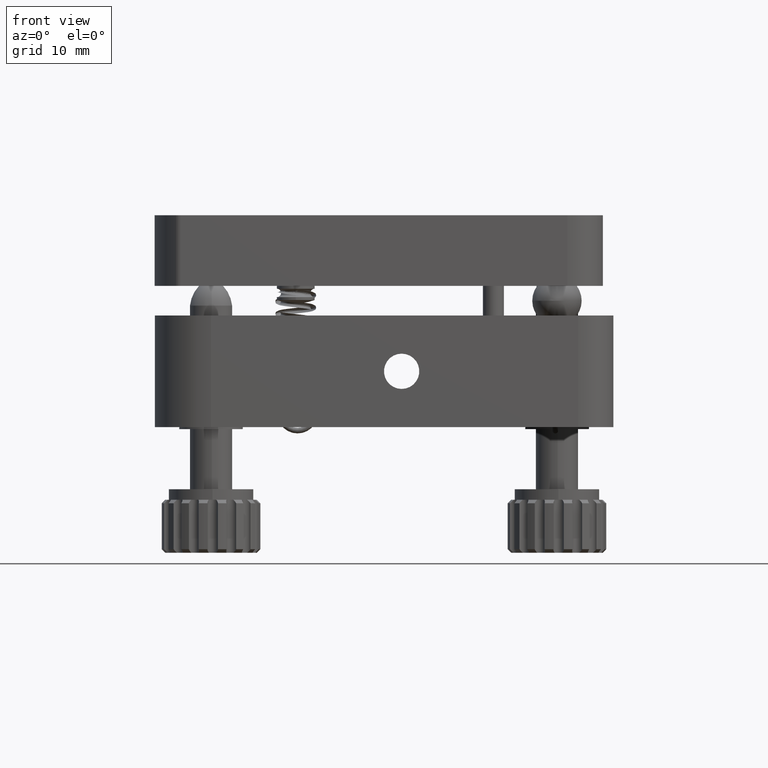
[diagram: clean part render]
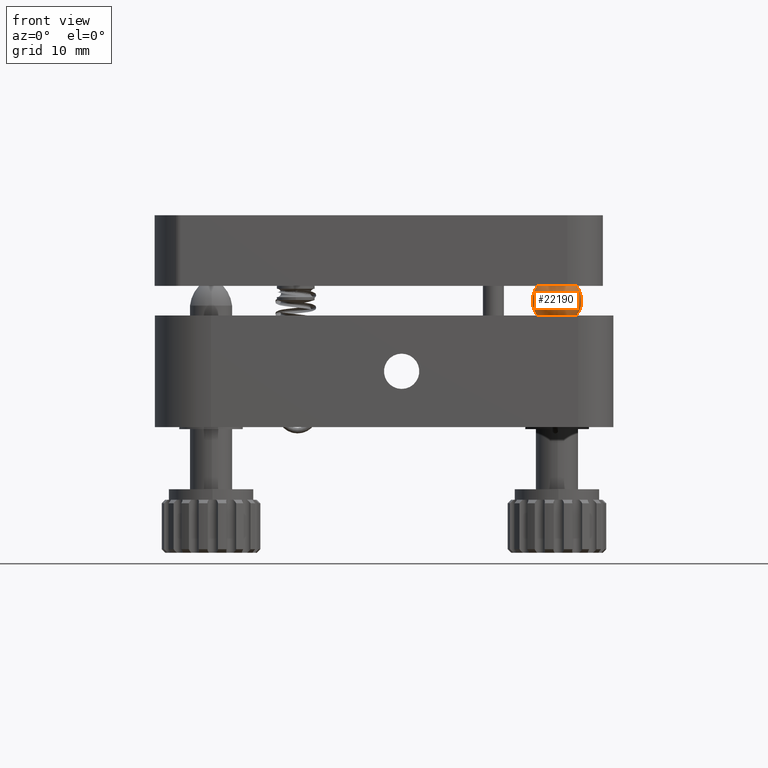
[diagram: same view with one face highlighted and labeled with its STEP entity id]
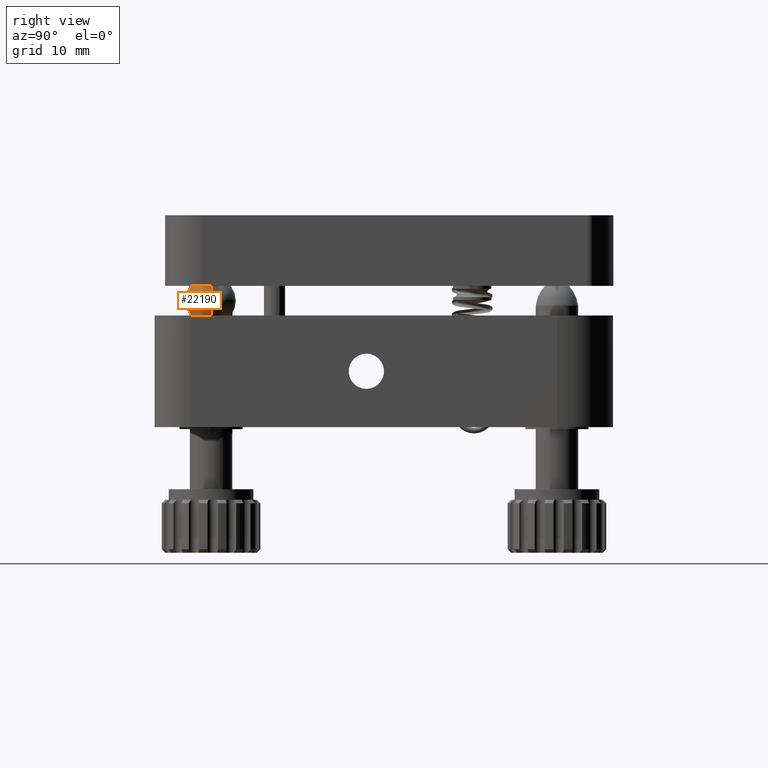
[diagram: same view with one face highlighted and labeled with its STEP entity id]
A machine part, front view. The second image highlights one B-rep face of the part: STEP entity #22190.
A second angle (right view) of the same face is appended — the face is thin or edge-on in the first view.
In plain terms, the highlighted spherical surface has radius 3.5 mm.
Its self-contained STEP definition (entity closure, byte-faithful):
#1049 = FACE_OUTER_BOUND ( 'NONE', #27177, .T. ) ;
#1548 = CARTESIAN_POINT ( 'NONE',  ( -7.999999999999998200, 7.999999999999996400, 20.00000000000000400 ) ) ;
#1866 = DIRECTION ( 'NONE',  ( 0.0000000000000000000, 1.000000000000000000, 0.0000000000000000000 ) ) ;
#4087 = DIRECTION ( 'NONE',  ( 0.0000000000000000000, -1.000000000000000000, 0.0000000000000000000 ) ) ;
#4400 = DIRECTION ( 'NONE',  ( 1.000000000000000000, 0.0000000000000000000, 0.0000000000000000000 ) ) ;
#7051 = AXIS2_PLACEMENT_3D ( 'NONE', #9973, #29733, #12841 ) ;
#7892 = ORIENTED_EDGE ( 'NONE', *, *, #27210, .T. ) ;
#8230 = VERTEX_POINT ( 'NONE', #36198 ) ;
#8716 = CIRCLE ( 'NONE', #7051, 3.499999999999999600 ) ;
#8822 = CARTESIAN_POINT ( 'NONE',  ( -7.999999999999998200, 7.999999999999996400, 15.80000000000000100 ) ) ;
#9402 = ORIENTED_EDGE ( 'NONE', *, *, #19219, .F. ) ;
#9973 = CARTESIAN_POINT ( 'NONE',  ( -7.999999999999998200, 7.999999999999996400, 17.90000000000000200 ) ) ;
#10061 = ORIENTED_EDGE ( 'NONE', *, *, #24252, .F. ) ;
#10799 = AXIS2_PLACEMENT_3D ( 'NONE', #8822, #28585, #11648 ) ;
#11648 = DIRECTION ( 'NONE',  ( 1.000000000000000000, 0.0000000000000000000, 0.0000000000000000000 ) ) ;
#12158 = CIRCLE ( 'NONE', #31487, 3.499999999999999600 ) ;
#12841 = DIRECTION ( 'NONE',  ( 1.000000000000000000, 0.0000000000000000000, 0.0000000000000000000 ) ) ;
#13435 = CARTESIAN_POINT ( 'NONE',  ( -5.200000000000000200, 7.999999999999996400, 20.00000000000000400 ) ) ;
#16760 = VERTEX_POINT ( 'NONE', #13435 ) ;
#17618 = EDGE_CURVE ( 'NONE', #24433, #16760, #8716, .T. ) ;
#18854 = CARTESIAN_POINT ( 'NONE',  ( -7.999999999999998200, 7.999999999999996400, 17.90000000000000200 ) ) ;
#19219 = EDGE_CURVE ( 'NONE', #8230, #16760, #26670, .T. ) ;
#19271 = ORIENTED_EDGE ( 'NONE', *, *, #17618, .T. ) ;
#19844 = AXIS2_PLACEMENT_3D ( 'NONE', #29408, #4087, #23908 ) ;
#20531 = CARTESIAN_POINT ( 'NONE',  ( -5.200000000000000200, 7.999999999999996400, 15.80000000000000100 ) ) ;
#21009 = SPHERICAL_SURFACE ( 'NONE', #19844, 3.499999999999999600 ) ;
#21394 = DIRECTION ( 'NONE',  ( -0.0000000000000000000, -0.0000000000000000000, 1.000000000000000000 ) ) ;
#21712 = DIRECTION ( 'NONE',  ( 0.0000000000000000000, 0.0000000000000000000, 1.000000000000000000 ) ) ;
#22190 = ADVANCED_FACE ( 'NONE', ( #1049 ), #21009, .T. ) ;
#23908 = DIRECTION ( 'NONE',  ( -1.000000000000000000, 0.0000000000000000000, 0.0000000000000000000 ) ) ;
#24167 = AXIS2_PLACEMENT_3D ( 'NONE', #1548, #21394, #4400 ) ;
#24252 = EDGE_CURVE ( 'NONE', #24944, #8230, #12158, .T. ) ;
#24433 = VERTEX_POINT ( 'NONE', #20531 ) ;
#24944 = VERTEX_POINT ( 'NONE', #34389 ) ;
#26670 = CIRCLE ( 'NONE', #24167, 2.799999999999998500 ) ;
#27177 = EDGE_LOOP ( 'NONE', ( #7892, #19271, #9402, #10061 ) ) ;
#27210 = EDGE_CURVE ( 'NONE', #24944, #24433, #33935, .T. ) ;
#28585 = DIRECTION ( 'NONE',  ( -0.0000000000000000000, -0.0000000000000000000, 1.000000000000000000 ) ) ;
#29408 = CARTESIAN_POINT ( 'NONE',  ( -7.999999999999998200, 7.999999999999996400, 17.90000000000000200 ) ) ;
#29733 = DIRECTION ( 'NONE',  ( -1.224646799147353200E-016, -1.000000000000000000, -0.0000000000000000000 ) ) ;
#31487 = AXIS2_PLACEMENT_3D ( 'NONE', #18854, #1866, #21712 ) ;
#33935 = CIRCLE ( 'NONE', #10799, 2.799999999999998500 ) ;
#34389 = CARTESIAN_POINT ( 'NONE',  ( -10.79999999999999700, 7.999999999999996400, 15.80000000000000100 ) ) ;
#36198 = CARTESIAN_POINT ( 'NONE',  ( -10.79999999999999700, 7.999999999999996400, 20.00000000000000400 ) ) ;